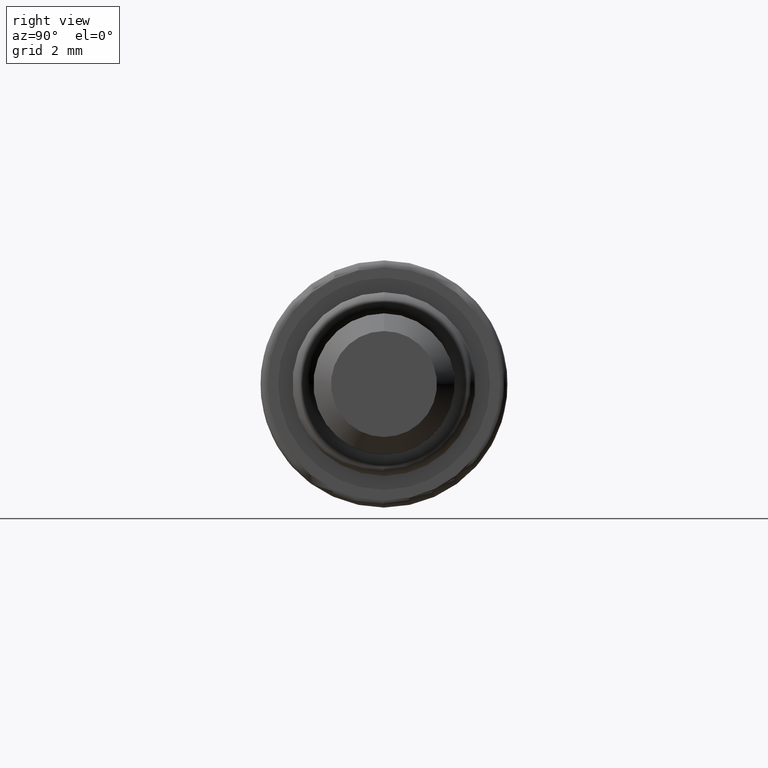
[diagram: clean part render]
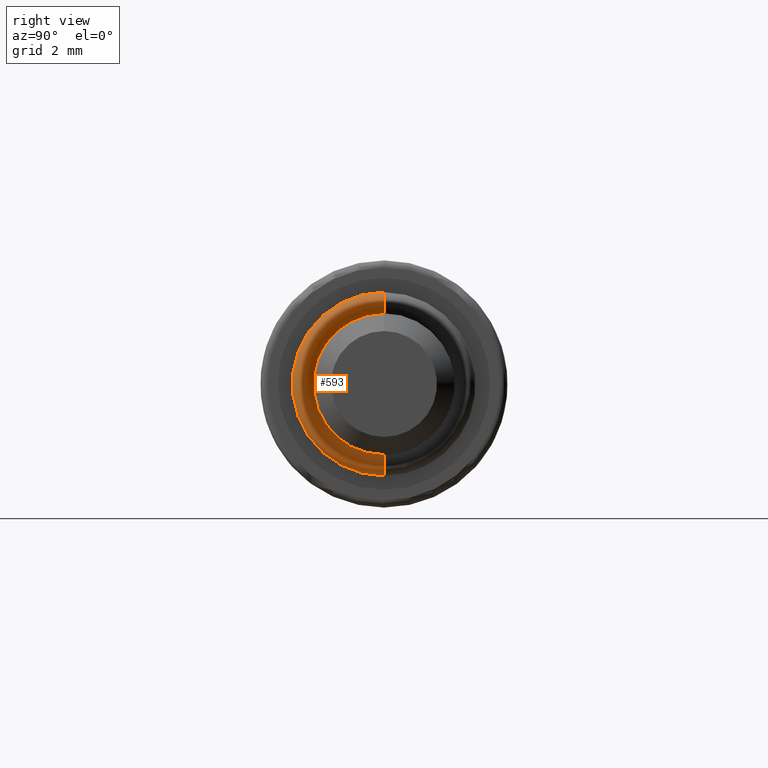
[diagram: same view with one face highlighted and labeled with its STEP entity id]
A machine part, right view. The second image highlights one B-rep face of the part: STEP entity #593.
In plain terms, the highlighted toroidal blend (fillet) surface has major radius 2.3 mm and minor (blend) radius 0.3 mm.
Its self-contained STEP definition (entity closure, byte-faithful):
#18 = CARTESIAN_POINT ( 'NONE',  ( 0.0000000000000000000, 0.0000000000000000000, 0.0000000000000000000 ) ) ;
#32 = CIRCLE ( 'NONE', #781, 0.2999999999999999300 ) ;
#61 = VERTEX_POINT ( 'NONE', #278 ) ;
#62 = EDGE_LOOP ( 'NONE', ( #765, #693, #640, #203 ) ) ;
#68 = DIRECTION ( 'NONE',  ( 0.0000000000000000000, 0.0000000000000000000, -1.000000000000000000 ) ) ;
#82 = CARTESIAN_POINT ( 'NONE',  ( 0.0000000000000000000, 2.816687638038912500E-016, 2.300000000000000300 ) ) ;
#85 = DIRECTION ( 'NONE',  ( 0.0000000000000000000, 0.0000000000000000000, -1.000000000000000000 ) ) ;
#120 = AXIS2_PLACEMENT_3D ( 'NONE', #497, #123, #460 ) ;
#123 = DIRECTION ( 'NONE',  ( 1.000000000000000000, -0.0000000000000000000, -0.0000000000000000000 ) ) ;
#128 = DIRECTION ( 'NONE',  ( 0.0000000000000000000, 0.0000000000000000000, -1.000000000000000000 ) ) ;
#160 = AXIS2_PLACEMENT_3D ( 'NONE', #18, #459, #85 ) ;
#200 = DIRECTION ( 'NONE',  ( 0.0000000000000000000, 1.224646799147353200E-016, 1.000000000000000000 ) ) ;
#203 = ORIENTED_EDGE ( 'NONE', *, *, #367, .F. ) ;
#278 = CARTESIAN_POINT ( 'NONE',  ( -3.673940397442057600E-017, 2.449293598294706900E-016, 2.000000000000000400 ) ) ;
#289 = CARTESIAN_POINT ( 'NONE',  ( 0.0000000000000000000, 0.0000000000000000000, 0.0000000000000000000 ) ) ;
#291 = TOROIDAL_SURFACE ( 'NONE', #607, 2.300000000000000300, 0.2999999999999998800 ) ;
#313 = VERTEX_POINT ( 'NONE', #722 ) ;
#367 = EDGE_CURVE ( 'NONE', #61, #313, #808, .T. ) ;
#422 = AXIS2_PLACEMENT_3D ( 'NONE', #82, #648, #200 ) ;
#447 = EDGE_CURVE ( 'NONE', #543, #61, #752, .T. ) ;
#459 = DIRECTION ( 'NONE',  ( 1.000000000000000000, -0.0000000000000000000, -0.0000000000000000000 ) ) ;
#460 = DIRECTION ( 'NONE',  ( 0.0000000000000000000, 0.0000000000000000000, -1.000000000000000000 ) ) ;
#470 = VERTEX_POINT ( 'NONE', #705 ) ;
#497 = CARTESIAN_POINT ( 'NONE',  ( -3.673940397442058300E-017, 0.0000000000000000000, 0.0000000000000000000 ) ) ;
#528 = CIRCLE ( 'NONE', #160, 2.600000000000000500 ) ;
#531 = CARTESIAN_POINT ( 'NONE',  ( 0.0000000000000000000, 3.184081677783118700E-016, 2.600000000000000500 ) ) ;
#543 = VERTEX_POINT ( 'NONE', #531 ) ;
#545 = EDGE_CURVE ( 'NONE', #470, #313, #32, .T. ) ;
#575 = DIRECTION ( 'NONE',  ( -0.0000000000000000000, -1.000000000000000000, -0.0000000000000000000 ) ) ;
#577 = CARTESIAN_POINT ( 'NONE',  ( 0.0000000000000000000, 0.0000000000000000000, -2.300000000000000300 ) ) ;
#593 = ADVANCED_FACE ( 'NONE', ( #789 ), #291, .T. ) ;
#607 = AXIS2_PLACEMENT_3D ( 'NONE', #289, #703, #128 ) ;
#640 = ORIENTED_EDGE ( 'NONE', *, *, #545, .T. ) ;
#648 = DIRECTION ( 'NONE',  ( 0.0000000000000000000, 1.000000000000000000, -1.224646799147353200E-016 ) ) ;
#663 = EDGE_CURVE ( 'NONE', #543, #470, #528, .T. ) ;
#693 = ORIENTED_EDGE ( 'NONE', *, *, #663, .T. ) ;
#703 = DIRECTION ( 'NONE',  ( 1.000000000000000000, -0.0000000000000000000, -0.0000000000000000000 ) ) ;
#705 = CARTESIAN_POINT ( 'NONE',  ( 0.0000000000000000000, 0.0000000000000000000, -2.600000000000000500 ) ) ;
#722 = CARTESIAN_POINT ( 'NONE',  ( -3.673940397442057600E-017, 0.0000000000000000000, -2.000000000000000400 ) ) ;
#752 = CIRCLE ( 'NONE', #422, 0.2999999999999999300 ) ;
#765 = ORIENTED_EDGE ( 'NONE', *, *, #447, .F. ) ;
#781 = AXIS2_PLACEMENT_3D ( 'NONE', #577, #575, #68 ) ;
#789 = FACE_OUTER_BOUND ( 'NONE', #62, .T. ) ;
#808 = CIRCLE ( 'NONE', #120, 2.000000000000000400 ) ;